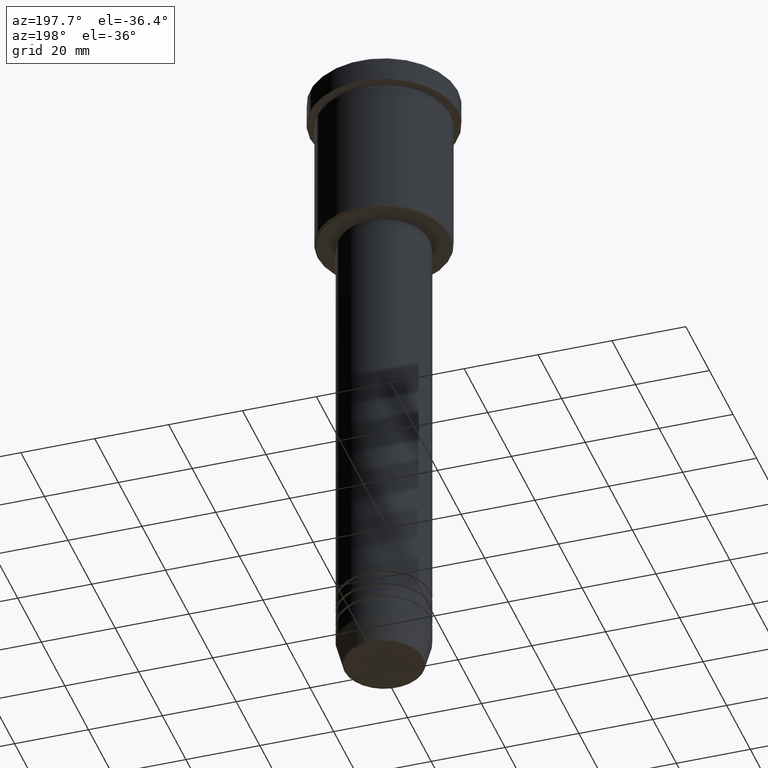
[diagram: clean part render]
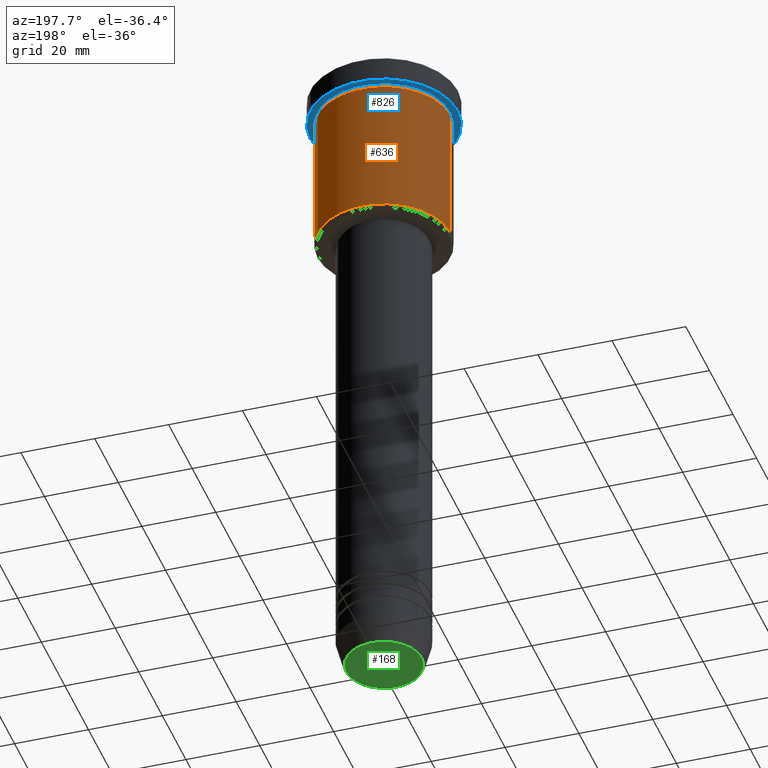
[diagram: same view with three faces highlighted in distinct colors, each labeled with its STEP entity id]
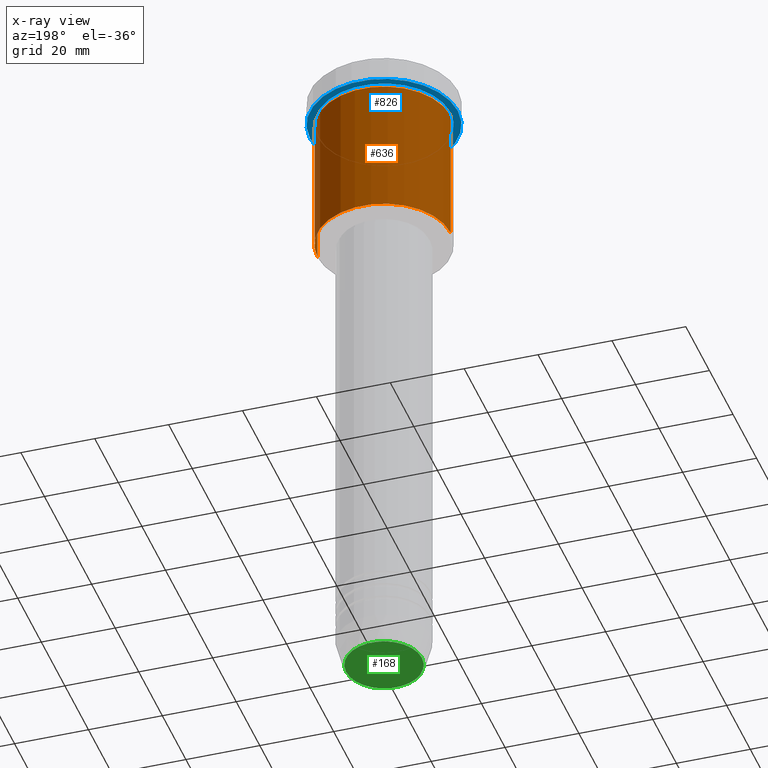
[diagram: x-ray of the same camera — body ghosted, the three highlighted faces saturated]
A machine part, auxiliary view with three faces highlighted in distinct colors.
The next image is the same camera in x-ray (body ghosted, the three faces saturated) — at least one of them is partly hidden behind the body in this view.
Their STEP definitions:

[orange] entity #636 — the highlighted cylindrical surface (partial cylindrical patch) has radius 18 mm, axis along (-0, -0, 1).
#37 = CARTESIAN_POINT ( 'NONE',  ( 18.00000000000000000, 0.000000000000000000, -45.49999999999995737 ) ) ;
#72 = ORIENTED_EDGE ( 'NONE', *, *, #945, .T. ) ;
#104 = CIRCLE ( 'NONE', #316, 18.00000000000000000 ) ;
#112 = DIRECTION ( 'NONE',  ( -0.000000000000000000, -0.000000000000000000, 1.000000000000000000 ) ) ;
#115 = DIRECTION ( 'NONE',  ( 1.000000000000000000, 0.000000000000000000, 0.000000000000000000 ) ) ;
#126 = AXIS2_PLACEMENT_3D ( 'NONE', #1110, #304, #1014 ) ;
#138 = DIRECTION ( 'NONE',  ( -0.000000000000000000, -0.000000000000000000, 1.000000000000000000 ) ) ;
#181 = LINE ( 'NONE', #894, #871 ) ;
#213 = CYLINDRICAL_SURFACE ( 'NONE', #460, 18.00000000000000000 ) ;
#304 = DIRECTION ( 'NONE',  ( -0.000000000000000000, -0.000000000000000000, 1.000000000000000000 ) ) ;
#316 = AXIS2_PLACEMENT_3D ( 'NONE', #500, #138, #1133 ) ;
#360 = VERTEX_POINT ( 'NONE', #583 ) ;
#390 = VERTEX_POINT ( 'NONE', #1125 ) ;
#408 = ORIENTED_EDGE ( 'NONE', *, *, #1109, .F. ) ;
#460 = AXIS2_PLACEMENT_3D ( 'NONE', #566, #112, #115 ) ;
#470 = CARTESIAN_POINT ( 'NONE',  ( -18.00000000000000000, 2.204364238465235428E-15, -7.999999999999996447 ) ) ;
#481 = VERTEX_POINT ( 'NONE', #470 ) ;
#500 = CARTESIAN_POINT ( 'NONE',  ( 0.000000000000000000, 0.000000000000000000, -7.999999999999996447 ) ) ;
#504 = LINE ( 'NONE', #864, #943 ) ;
#542 = ORIENTED_EDGE ( 'NONE', *, *, #1123, .F. ) ;
#566 = CARTESIAN_POINT ( 'NONE',  ( 0.000000000000000000, 0.000000000000000000, 0.000000000000000000 ) ) ;
#576 = FACE_OUTER_BOUND ( 'NONE', #824, .T. ) ;
#583 = CARTESIAN_POINT ( 'NONE',  ( -18.00000000000000000, 2.204364238465235428E-15, -45.49999999999995737 ) ) ;
#636 = ADVANCED_FACE ( 'NONE', ( #576 ), #213, .T. ) ;
#670 = VERTEX_POINT ( 'NONE', #37 ) ;
#686 = EDGE_CURVE ( 'NONE', #670, #360, #722, .T. ) ;
#722 = CIRCLE ( 'NONE', #126, 18.00000000000000000 ) ;
#788 = DIRECTION ( 'NONE',  ( -0.000000000000000000, -0.000000000000000000, 1.000000000000000000 ) ) ;
#798 = DIRECTION ( 'NONE',  ( -0.000000000000000000, -0.000000000000000000, 1.000000000000000000 ) ) ;
#805 = ORIENTED_EDGE ( 'NONE', *, *, #686, .T. ) ;
#824 = EDGE_LOOP ( 'NONE', ( #805, #72, #408, #542 ) ) ;
#864 = CARTESIAN_POINT ( 'NONE',  ( 18.00000000000000000, 0.000000000000000000, 0.000000000000000000 ) ) ;
#871 = VECTOR ( 'NONE', #798, 1000.000000000000000 ) ;
#894 = CARTESIAN_POINT ( 'NONE',  ( -18.00000000000000000, 2.204364238465235428E-15, 0.000000000000000000 ) ) ;
#943 = VECTOR ( 'NONE', #788, 1000.000000000000000 ) ;
#945 = EDGE_CURVE ( 'NONE', #360, #481, #181, .T. ) ;
#1014 = DIRECTION ( 'NONE',  ( -1.000000000000000000, 0.000000000000000000, 0.000000000000000000 ) ) ;
#1109 = EDGE_CURVE ( 'NONE', #390, #481, #104, .T. ) ;
#1110 = CARTESIAN_POINT ( 'NONE',  ( 0.000000000000000000, 0.000000000000000000, -45.49999999999995737 ) ) ;
#1123 = EDGE_CURVE ( 'NONE', #670, #390, #504, .T. ) ;
#1125 = CARTESIAN_POINT ( 'NONE',  ( 18.00000000000000000, 0.000000000000000000, -7.999999999999996447 ) ) ;
#1133 = DIRECTION ( 'NONE',  ( 1.000000000000000000, 0.000000000000000000, 0.000000000000000000 ) ) ;

[blue] entity #826 — the highlighted planar face has unit normal (0, 0, -1).
#75 = VERTEX_POINT ( 'NONE', #133 ) ;
#133 = CARTESIAN_POINT ( 'NONE',  ( 18.00000000000000000, 2.204364238465235428E-15, -6.999999999999995559 ) ) ;
#188 = EDGE_LOOP ( 'NONE', ( #567, #1013 ) ) ;
#201 = AXIS2_PLACEMENT_3D ( 'NONE', #326, #690, #320 ) ;
#246 = CARTESIAN_POINT ( 'NONE',  ( -18.00000000000000000, 0.000000000000000000, -6.999999999999995559 ) ) ;
#259 = VERTEX_POINT ( 'NONE', #727 ) ;
#264 = DIRECTION ( 'NONE',  ( -1.000000000000000000, 0.000000000000000000, -0.000000000000000000 ) ) ;
#320 = DIRECTION ( 'NONE',  ( 1.000000000000000000, 0.000000000000000000, 0.000000000000000000 ) ) ;
#326 = CARTESIAN_POINT ( 'NONE',  ( 0.000000000000000000, 0.000000000000000000, -6.999999999999995559 ) ) ;
#333 = CARTESIAN_POINT ( 'NONE',  ( 0.000000000000000000, 0.000000000000000000, -6.999999999999995559 ) ) ;
#359 = CIRCLE ( 'NONE', #201, 20.00000000000000000 ) ;
#366 = DIRECTION ( 'NONE',  ( 1.000000000000000000, 0.000000000000000000, 0.000000000000000000 ) ) ;
#476 = AXIS2_PLACEMENT_3D ( 'NONE', #634, #1077, #264 ) ;
#488 = EDGE_CURVE ( 'NONE', #803, #259, #720, .T. ) ;
#509 = AXIS2_PLACEMENT_3D ( 'NONE', #333, #1054, #958 ) ;
#526 = FACE_OUTER_BOUND ( 'NONE', #920, .T. ) ;
#545 = CARTESIAN_POINT ( 'NONE',  ( 0.000000000000000000, 0.000000000000000000, -6.999999999999995559 ) ) ;
#551 = ORIENTED_EDGE ( 'NONE', *, *, #1002, .F. ) ;
#567 = ORIENTED_EDGE ( 'NONE', *, *, #737, .T. ) ;
#593 = DIRECTION ( 'NONE',  ( -0.000000000000000000, -0.000000000000000000, 1.000000000000000000 ) ) ;
#634 = CARTESIAN_POINT ( 'NONE',  ( 0.000000000000000000, 20.00000000000000000, -6.999999999999995559 ) ) ;
#641 = CIRCLE ( 'NONE', #741, 18.00000000000000000 ) ;
#690 = DIRECTION ( 'NONE',  ( -0.000000000000000000, -0.000000000000000000, 1.000000000000000000 ) ) ;
#720 = CIRCLE ( 'NONE', #740, 20.00000000000000000 ) ;
#727 = CARTESIAN_POINT ( 'NONE',  ( 20.00000000000000000, 0.000000000000000000, -6.999999999999995559 ) ) ;
#731 = VERTEX_POINT ( 'NONE', #246 ) ;
#737 = EDGE_CURVE ( 'NONE', #731, #75, #641, .T. ) ;
#740 = AXIS2_PLACEMENT_3D ( 'NONE', #545, #1091, #366 ) ;
#741 = AXIS2_PLACEMENT_3D ( 'NONE', #955, #593, #1056 ) ;
#797 = ORIENTED_EDGE ( 'NONE', *, *, #488, .F. ) ;
#803 = VERTEX_POINT ( 'NONE', #879 ) ;
#826 = ADVANCED_FACE ( 'NONE', ( #974, #526 ), #915, .T. ) ;
#879 = CARTESIAN_POINT ( 'NONE',  ( -20.00000000000000000, 2.449293598294706513E-15, -6.999999999999995559 ) ) ;
#915 = PLANE ( 'NONE',  #476 ) ;
#920 = EDGE_LOOP ( 'NONE', ( #551, #797 ) ) ;
#926 = CIRCLE ( 'NONE', #509, 18.00000000000000000 ) ;
#955 = CARTESIAN_POINT ( 'NONE',  ( 0.000000000000000000, 0.000000000000000000, -6.999999999999995559 ) ) ;
#958 = DIRECTION ( 'NONE',  ( -1.000000000000000000, 0.000000000000000000, 0.000000000000000000 ) ) ;
#974 = FACE_BOUND ( 'NONE', #188, .T. ) ;
#1002 = EDGE_CURVE ( 'NONE', #259, #803, #359, .T. ) ;
#1013 = ORIENTED_EDGE ( 'NONE', *, *, #1027, .T. ) ;
#1027 = EDGE_CURVE ( 'NONE', #75, #731, #926, .T. ) ;
#1054 = DIRECTION ( 'NONE',  ( -0.000000000000000000, -0.000000000000000000, 1.000000000000000000 ) ) ;
#1056 = DIRECTION ( 'NONE',  ( -1.000000000000000000, 0.000000000000000000, 0.000000000000000000 ) ) ;
#1077 = DIRECTION ( 'NONE',  ( 0.000000000000000000, 0.000000000000000000, -1.000000000000000000 ) ) ;
#1091 = DIRECTION ( 'NONE',  ( -0.000000000000000000, -0.000000000000000000, 1.000000000000000000 ) ) ;

[green] entity #168 — the highlighted planar face has unit normal (0, -0, 1).
#34 = CIRCLE ( 'NONE', #909, 10.24069215899266538 ) ;
#74 = DIRECTION ( 'NONE',  ( 0.000000000000000000, 0.000000000000000000, -1.000000000000000000 ) ) ;
#105 = VERTEX_POINT ( 'NONE', #1168 ) ;
#168 = ADVANCED_FACE ( 'NONE', ( #1164 ), #897, .F. ) ;
#345 = EDGE_LOOP ( 'NONE', ( #898, #1012 ) ) ;
#348 = CARTESIAN_POINT ( 'NONE',  ( 0.000000000000000000, 0.000000000000000000, -180.0000000000000000 ) ) ;
#417 = DIRECTION ( 'NONE',  ( 0.000000000000000000, -0.000000000000000000, 1.000000000000000000 ) ) ;
#433 = EDGE_CURVE ( 'NONE', #762, #105, #606, .T. ) ;
#434 = CARTESIAN_POINT ( 'NONE',  ( 0.000000000000000000, 0.000000000000000000, -180.0000000000000000 ) ) ;
#529 = AXIS2_PLACEMENT_3D ( 'NONE', #348, #417, #782 ) ;
#530 = CARTESIAN_POINT ( 'NONE',  ( 0.000000000000000000, 0.000000000000000000, -180.0000000000000000 ) ) ;
#606 = CIRCLE ( 'NONE', #981, 10.24069215899266538 ) ;
#609 = DIRECTION ( 'NONE',  ( 0.000000000000000000, 0.000000000000000000, -1.000000000000000000 ) ) ;
#762 = VERTEX_POINT ( 'NONE', #862 ) ;
#782 = DIRECTION ( 'NONE',  ( 1.000000000000000000, 0.000000000000000000, 0.000000000000000000 ) ) ;
#802 = DIRECTION ( 'NONE',  ( 1.000000000000000000, 0.000000000000000000, 0.000000000000000000 ) ) ;
#862 = CARTESIAN_POINT ( 'NONE',  ( -10.24069215899266538, 1.283696036640842967E-15, -180.0000000000000000 ) ) ;
#897 = PLANE ( 'NONE',  #529 ) ;
#898 = ORIENTED_EDGE ( 'NONE', *, *, #995, .T. ) ;
#909 = AXIS2_PLACEMENT_3D ( 'NONE', #530, #74, #802 ) ;
#981 = AXIS2_PLACEMENT_3D ( 'NONE', #434, #609, #1160 ) ;
#995 = EDGE_CURVE ( 'NONE', #105, #762, #34, .T. ) ;
#1012 = ORIENTED_EDGE ( 'NONE', *, *, #433, .T. ) ;
#1160 = DIRECTION ( 'NONE',  ( 1.000000000000000000, 0.000000000000000000, 0.000000000000000000 ) ) ;
#1164 = FACE_OUTER_BOUND ( 'NONE', #345, .T. ) ;
#1168 = CARTESIAN_POINT ( 'NONE',  ( 10.24069215899266538, 0.000000000000000000, -180.0000000000000000 ) ) ;